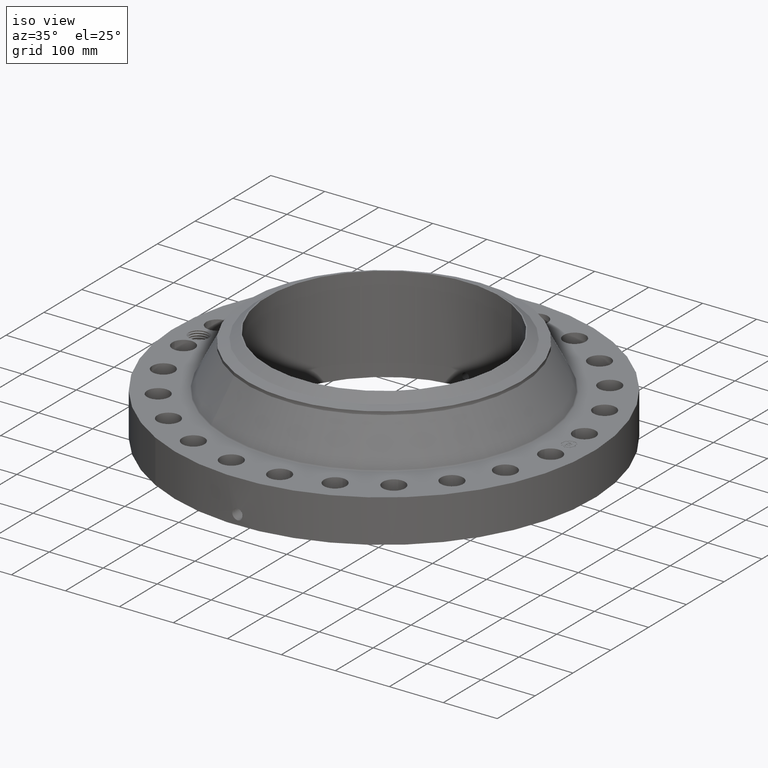
[diagram: clean part render]
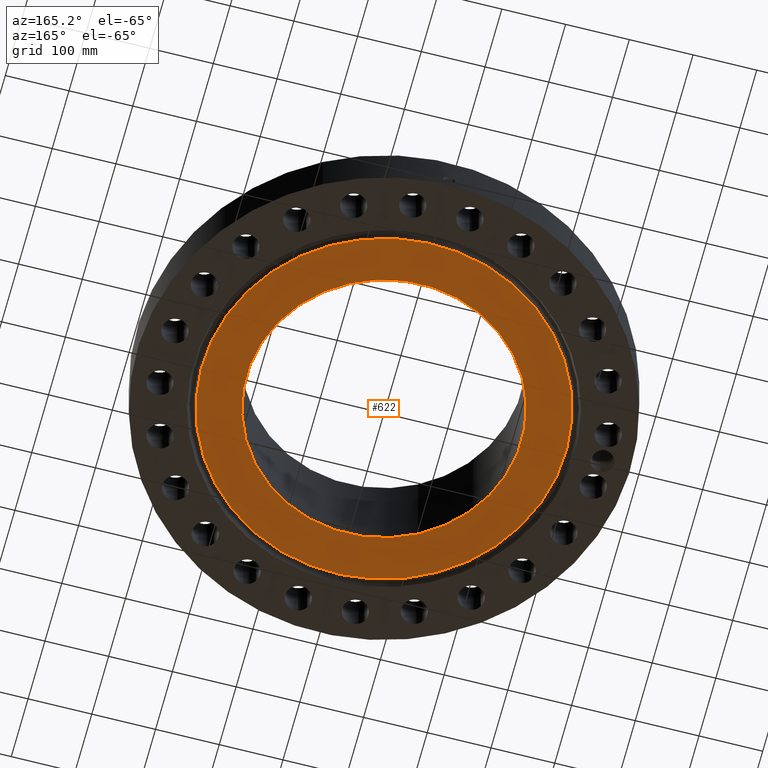
[diagram: tour spotlight — one face highlighted and labeled with its STEP entity id]
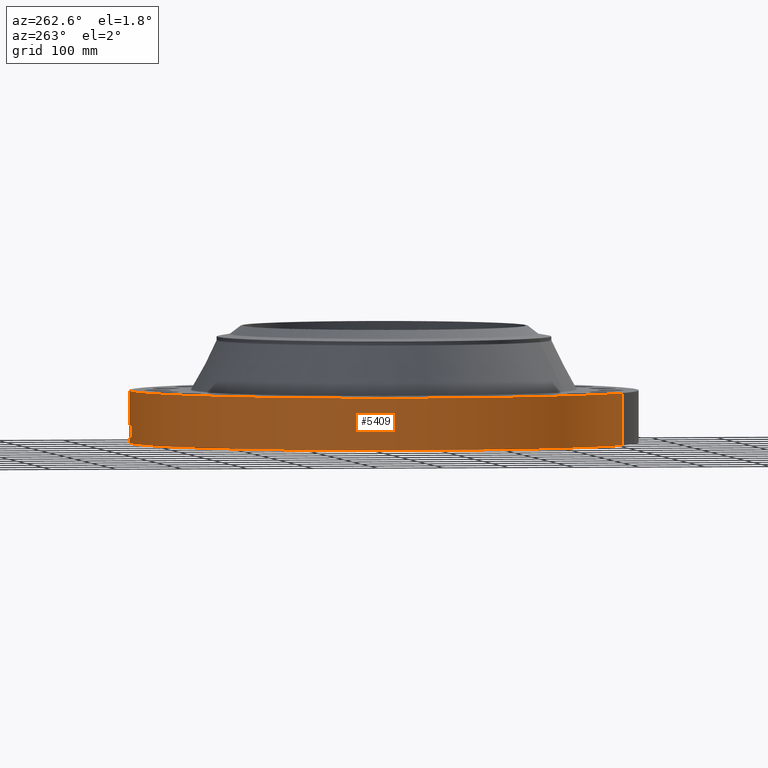
[diagram: tour spotlight — one face highlighted and labeled with its STEP entity id]
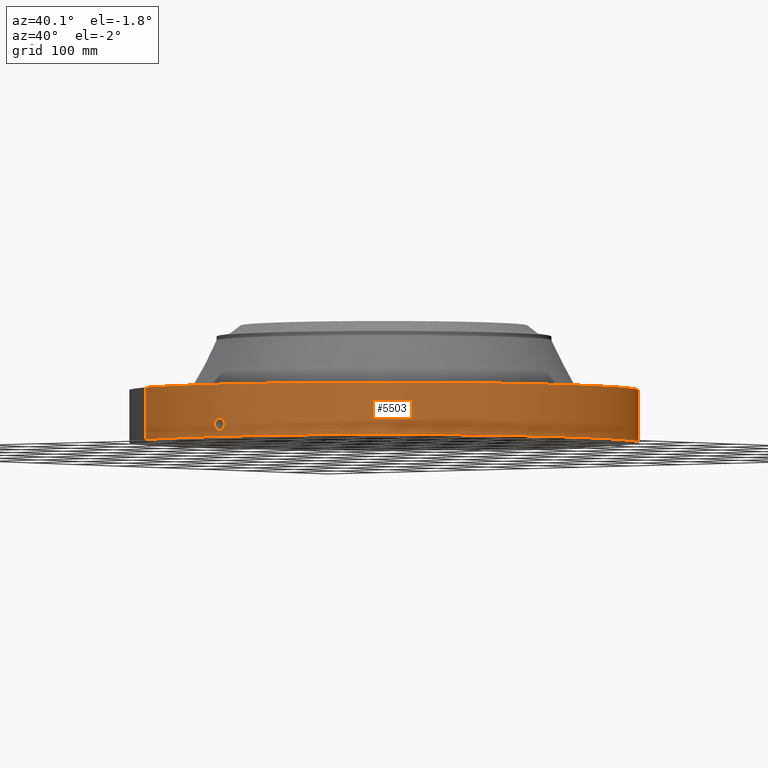
[diagram: tour spotlight — one face highlighted and labeled with its STEP entity id]
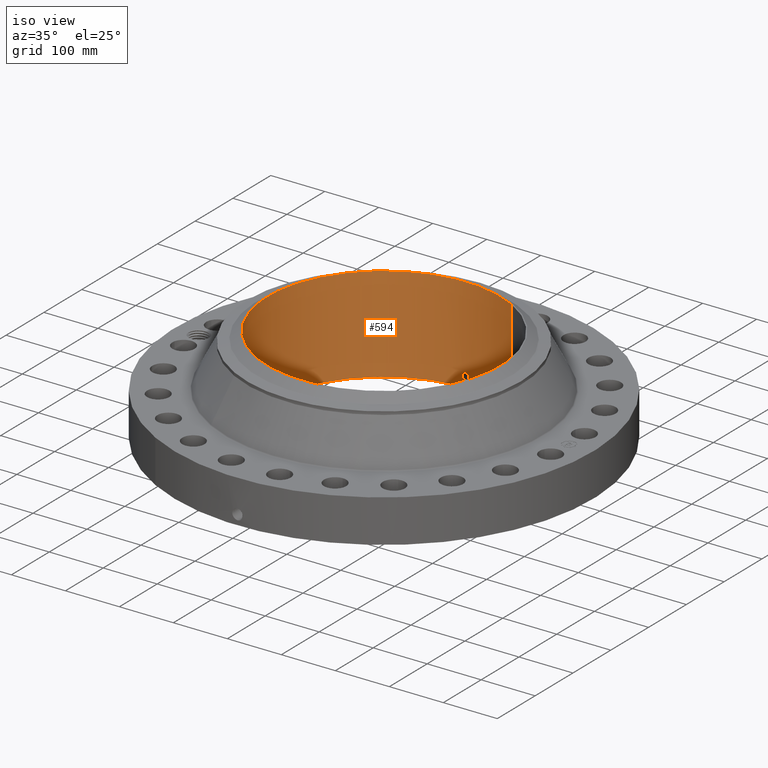
[diagram: tour spotlight — one face highlighted and labeled with its STEP entity id]
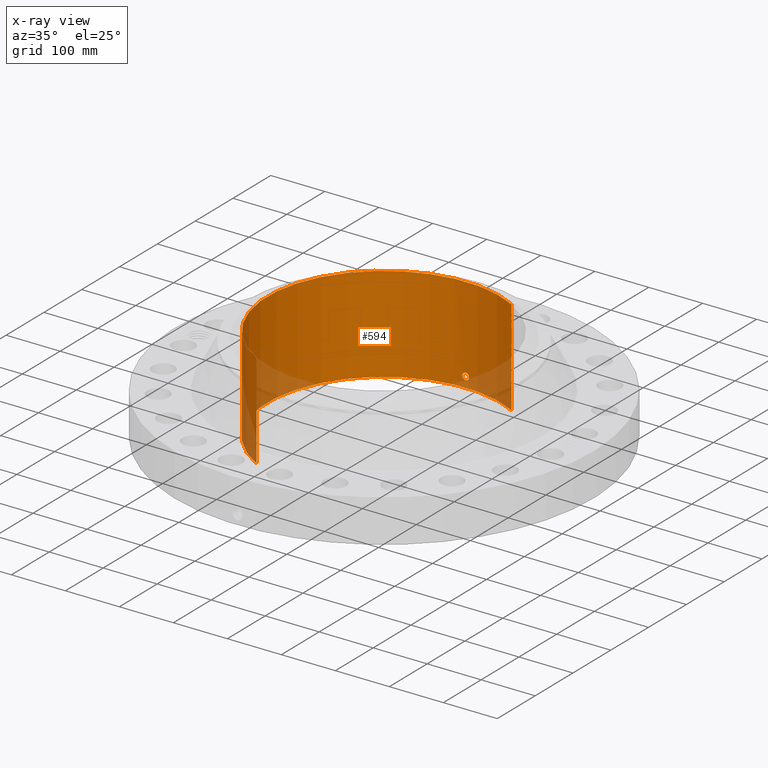
[diagram: x-ray of the same camera — body ghosted, this tour face saturated]
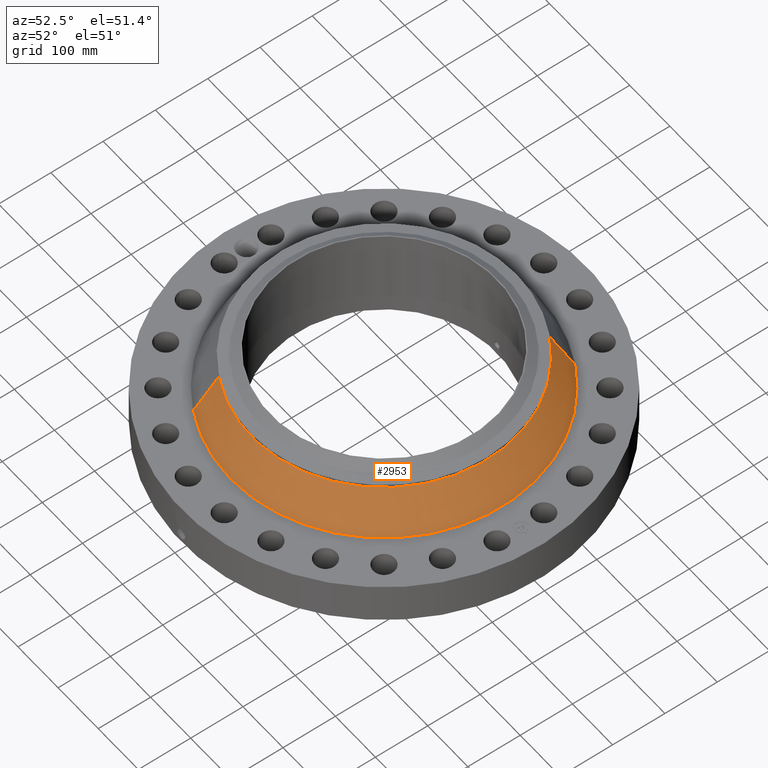
[diagram: tour spotlight — one face highlighted and labeled with its STEP entity id]
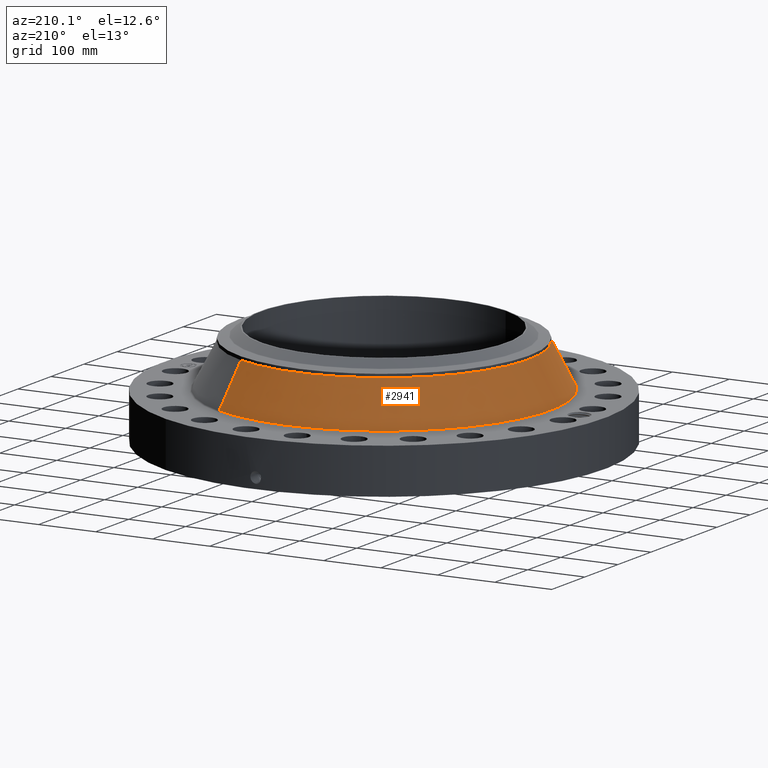
[diagram: tour spotlight — one face highlighted and labeled with its STEP entity id]
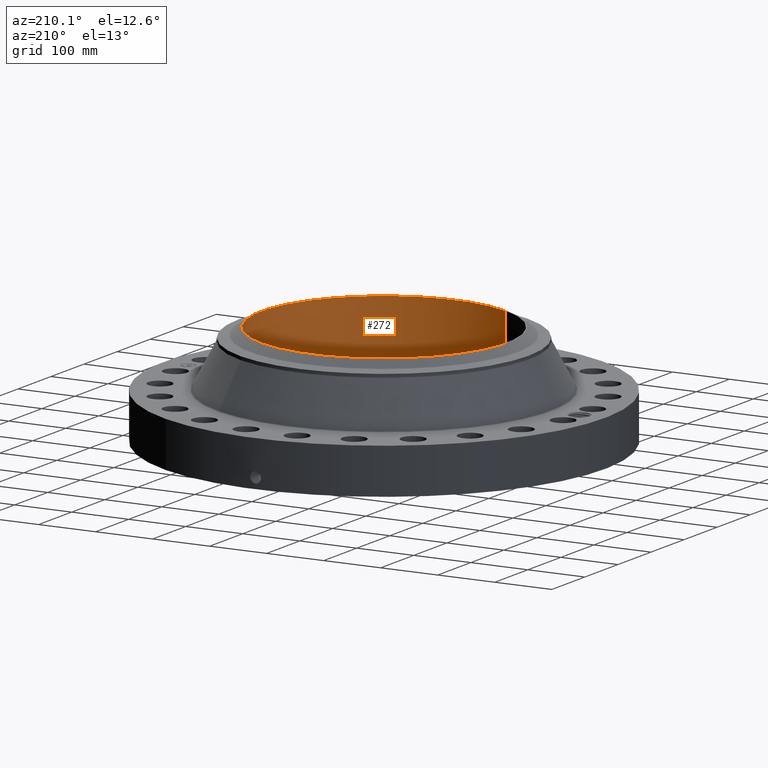
[diagram: tour spotlight — one face highlighted and labeled with its STEP entity id]
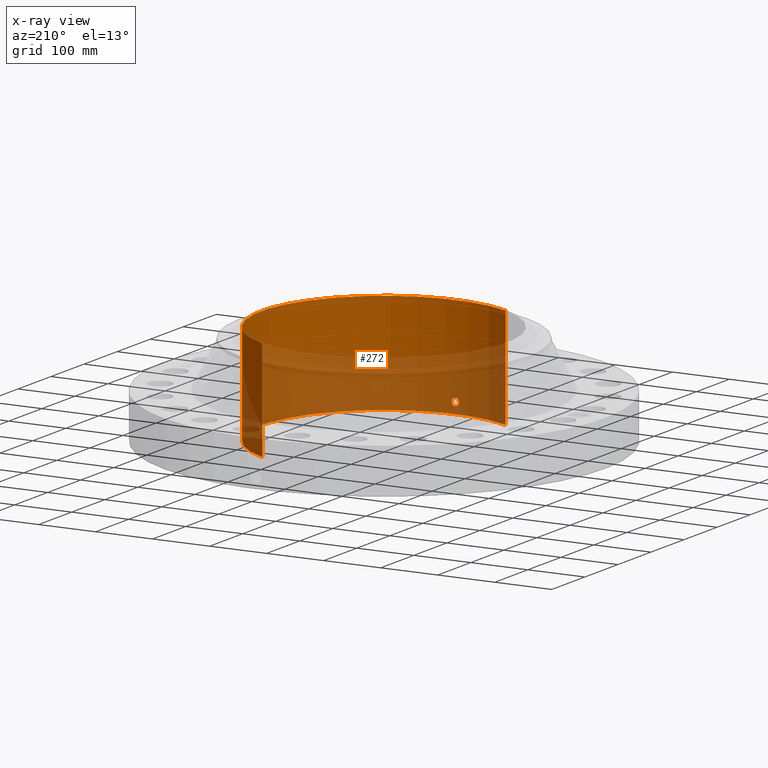
[diagram: x-ray of the same camera — body ghosted, this tour face saturated]
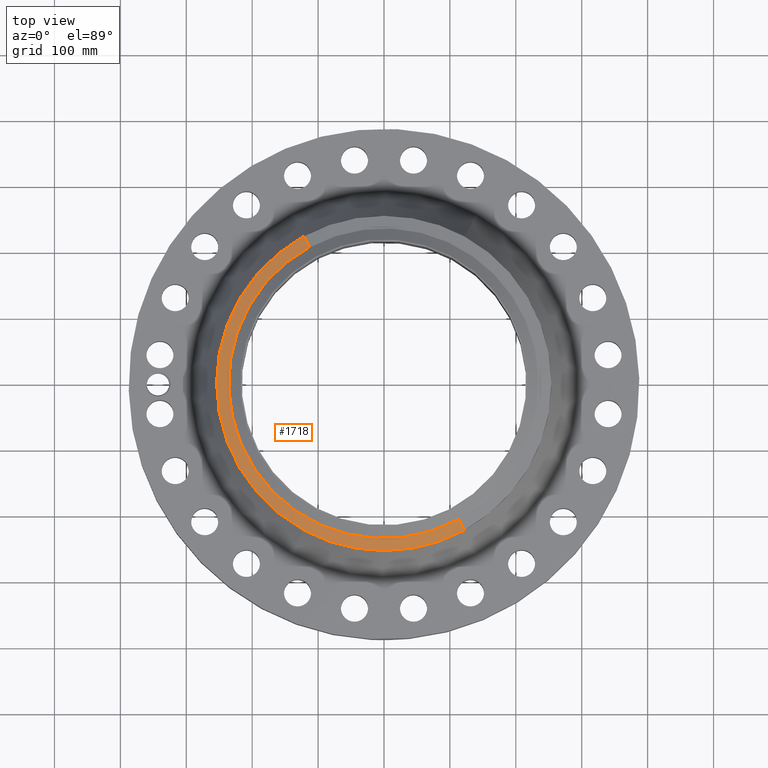
[diagram: tour spotlight — one face highlighted and labeled with its STEP entity id]
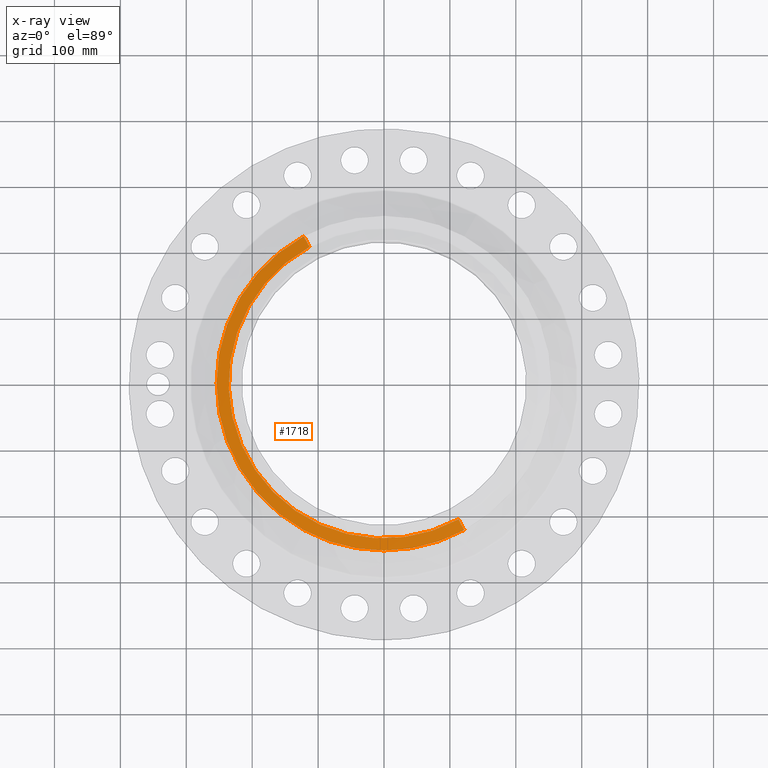
[diagram: x-ray of the same camera — body ghosted, this tour face saturated]
A machine part: a face-by-face anatomy tour. The part has 835 B-rep faces; the first image is the clean iso view, then the 8 largest visible faces are spotlighted one at a time (largest first), each with its STEP entity span.

Face 1 — auxiliary view, entity #622. In plain terms, the highlighted planar face has unit normal (0, 0, -1).
Definition (entity closure, byte-faithful):
#252=AXIS2_PLACEMENT_3D('Circle Axis2P3D',#250,#251,$) ;
#543=AXIS2_PLACEMENT_3D('Circle Axis2P3D',#541,#542,$) ;
#598=AXIS2_PLACEMENT_3D('Plane Axis2P3D',#595,#596,#597) ;
#602=AXIS2_PLACEMENT_3D('Circle Axis2P3D',#600,#601,$) ;
#611=AXIS2_PLACEMENT_3D('Circle Axis2P3D',#609,#610,$) ;
#247=CARTESIAN_POINT('Vertex',(4.07511707815,7.4594517761,-6.93758261687E-014)) ;
#250=CARTESIAN_POINT('Axis2P3D Location',(0.,0.,-6.93758261687E-014)) ;
#254=CARTESIAN_POINT('Vertex',(-4.07511707815,-7.4594517761,-6.93758261687E-014)) ;
#541=CARTESIAN_POINT('Axis2P3D Location',(0.,0.,-6.93758261687E-014)) ;
#595=CARTESIAN_POINT('Axis2P3D Location',(0.,8.50000000003,0.)) ;
#600=CARTESIAN_POINT('Axis2P3D Location',(1.1189649382E-015,-1.1189649382E-015,0.)) ;
#604=CARTESIAN_POINT('Vertex',(-5.38610621347,9.8592012916,3.40934629609E-016)) ;
#606=CARTESIAN_POINT('Vertex',(5.38610621347,-9.8592012916,0.)) ;
#609=CARTESIAN_POINT('Axis2P3D Location',(-3.35689481461E-015,2.23792987641E-015,0.)) ;
#251=DIRECTION('Axis2P3D Direction',(0.,0.,-0.0393700787402)) ;
#542=DIRECTION('Axis2P3D Direction',(0.,0.,-0.0393700787402)) ;
#596=DIRECTION('Axis2P3D Direction',(0.,0.,-0.0393700787402)) ;
#597=DIRECTION('Axis2P3D XDirection',(0.0393700787402,0.,0.)) ;
#601=DIRECTION('Axis2P3D Direction',(0.,0.,-0.0393700787402)) ;
#610=DIRECTION('Axis2P3D Direction',(0.,0.,-0.0393700787402)) ;
#615=ORIENTED_EDGE('',*,*,#608,.T.) ;
#616=ORIENTED_EDGE('',*,*,#613,.T.) ;
#619=ORIENTED_EDGE('',*,*,#256,.F.) ;
#620=ORIENTED_EDGE('',*,*,#545,.F.) ;
#621=FACE_BOUND('',#618,.T.) ;
#622=ADVANCED_FACE('PartBody',(#617,#621),#599,.T.) ;
#253=CIRCLE('generated circle',#252,8.50000000003) ;
#544=CIRCLE('generated circle',#543,8.50000000003) ;
#603=CIRCLE('generated circle',#602,11.2345) ;
#612=CIRCLE('generated circle',#611,11.2345) ;
#256=EDGE_CURVE('',#248,#255,#253,.T.) ;
#545=EDGE_CURVE('',#255,#248,#544,.T.) ;
#608=EDGE_CURVE('',#605,#607,#603,.T.) ;
#613=EDGE_CURVE('',#607,#605,#612,.T.) ;
#614=EDGE_LOOP('',(#615,#616)) ;
#618=EDGE_LOOP('',(#619,#620)) ;
#617=FACE_OUTER_BOUND('',#614,.T.) ;
#599=PLANE('',#598) ;
#248=VERTEX_POINT('',#247) ;
#255=VERTEX_POINT('',#254) ;
#605=VERTEX_POINT('',#604) ;
#607=VERTEX_POINT('',#606) ;

Face 2 — auxiliary view, entity #5409. In plain terms, the highlighted cylindrical surface (partial cylindrical patch) has radius 387.35 mm, axis along (0, 0, -1).
Definition (entity closure, byte-faithful):
#3850=AXIS2_PLACEMENT_3D('Circle Axis2P3D',#3848,#3849,$) ;
#4556=AXIS2_PLACEMENT_3D('Circle Axis2P3D',#4554,#4555,$) ;
#5304=AXIS2_PLACEMENT_3D('Cylinder Axis2P3D',#5301,#5302,#5303) ;
#3848=CARTESIAN_POINT('Axis2P3D Location',(0.,0.,0.)) ;
#3852=CARTESIAN_POINT('Vertex',(-7.31123946374,-13.3831340689,1.67844740731E-015)) ;
#3854=CARTESIAN_POINT('Vertex',(7.31123946374,13.3831340689,1.67844740731E-015)) ;
#4549=CARTESIAN_POINT('Vertex',(7.31123946374,13.3831340689,3.12500000001)) ;
#4551=CARTESIAN_POINT('Vertex',(-7.31123946374,-13.3831340689,3.12500000001)) ;
#4554=CARTESIAN_POINT('Axis2P3D Location',(0.,0.,3.12500000001)) ;
#5301=CARTESIAN_POINT('Axis2P3D Location',(0.,0.,3.49750000001)) ;
#5306=CARTESIAN_POINT('Line Origine',(-7.31123946374,-13.3831340689,1.56250000001)) ;
#5311=CARTESIAN_POINT('Line Origine',(7.31123946374,13.3831340689,1.56250000001)) ;
#5323=CARTESIAN_POINT('Control Point',(-0.000716048937865,15.2499999833,1.10411846129)) ;
#5324=CARTESIAN_POINT('Control Point',(-0.0189700497915,15.2499991262,1.10408159453)) ;
#5325=CARTESIAN_POINT('Control Point',(-0.0372208610663,15.2499652357,1.10262937582)) ;
#5326=CARTESIAN_POINT('Control Point',(-0.0552507713392,15.2498999129,1.09977930477)) ;
#5327=CARTESIAN_POINT('Vertex',(-0.000715696379591,15.2499999833,1.10411851056)) ;
#5329=CARTESIAN_POINT('Vertex',(-0.0552419730431,15.249900197,1.09978071368)) ;
#5333=CARTESIAN_POINT('Control Point',(-0.0552418779669,15.2498999451,1.09978016677)) ;
#5334=CARTESIAN_POINT('Control Point',(-0.0956980511672,15.249753395,1.09536272165)) ;
#5335=CARTESIAN_POINT('Control Point',(-0.135516472798,15.249441984,1.08358726771)) ;
#5336=CARTESIAN_POINT('Control Point',(-0.172195687342,15.2490277935,1.06523274047)) ;
#5337=CARTESIAN_POINT('Vertex',(-0.172195687342,15.2490277935,1.06523274047)) ;
#5341=CARTESIAN_POINT('Control Point',(-0.0310152955329,15.2499684607,0.341189291004)) ;
#5342=CARTESIAN_POINT('Control Point',(-0.0961823792399,15.2498359243,0.349436742334)) ;
#5343=CARTESIAN_POINT('Control Point',(-0.159294070966,15.2493594718,0.371293742778)) ;
#5344=CARTESIAN_POINT('Control Point',(-0.216401166251,15.248588709,0.40609880353)) ;
#5345=CARTESIAN_POINT('Control Point',(-0.288819786934,15.2473275342,0.474189951409)) ;
#5346=CARTESIAN_POINT('Control Point',(-0.336428397375,15.246299475,0.558671465485)) ;
#5347=CARTESIAN_POINT('Control Point',(-0.349472608061,15.2460004618,0.58873297338)) ;
#5348=CARTESIAN_POINT('Control Point',(-0.371687709831,15.2454753167,0.658970823499)) ;
#5349=CARTESIAN_POINT('Control Point',(-0.377175371761,15.2453335919,0.732141211967)) ;
#5350=CARTESIAN_POINT('Control Point',(-0.374910276697,15.2453911794,0.772947961975)) ;
#5351=CARTESIAN_POINT('Control Point',(-0.356496007121,15.2458512497,0.87072433446)) ;
#5352=CARTESIAN_POINT('Control Point',(-0.308136761367,15.2469313737,0.957943273323)) ;
#5353=CARTESIAN_POINT('Control Point',(-0.269818060649,15.2477093275,1.00323966133)) ;
#5354=CARTESIAN_POINT('Control Point',(-0.223535755202,15.2484480491,1.03954181886)) ;
#5355=CARTESIAN_POINT('Control Point',(-0.172195687342,15.2490277935,1.06523274047)) ;
#5356=CARTESIAN_POINT('Vertex',(-0.0310152955329,15.2499684607,0.341189291004)) ;
#5360=CARTESIAN_POINT('Control Point',(-0.0310152955329,15.2499684607,0.341189291004)) ;
#5361=CARTESIAN_POINT('Control Point',(-0.0206719970494,15.2499894969,0.340874570362)) ;
#5362=CARTESIAN_POINT('Control Point',(-0.0103211280085,15.2500000019,0.340936539162)) ;
#5363=CARTESIAN_POINT('Control Point',(2.7287835326E-006,15.2500000001,0.341374667805)) ;
#5364=CARTESIAN_POINT('Vertex',(2.7287835403E-006,15.2500000001,0.341374667805)) ;
#5368=CARTESIAN_POINT('Control Point',(0.192625061438,15.2487834134,0.397413269239)) ;
#5369=CARTESIAN_POINT('Control Point',(0.149005457481,15.2493344231,0.372040395926)) ;
#5370=CARTESIAN_POINT('Control Point',(0.101116385111,15.2497737091,0.353779864819)) ;
#5371=CARTESIAN_POINT('Control Point',(0.0508056148691,15.249999991,0.343530662196)) ;
#5372=CARTESIAN_POINT('Control Point',(2.72878355967E-006,15.2500000001,0.341374667805)) ;
#5373=CARTESIAN_POINT('Vertex',(0.192625061438,15.2487834134,0.397413269239)) ;
#5377=CARTESIAN_POINT('Control Point',(0.192625061438,15.2487834134,0.397413269239)) ;
#5378=CARTESIAN_POINT('Control Point',(0.249453805308,15.2480655436,0.430469701706)) ;
#5379=CARTESIAN_POINT('Control Point',(0.299509285738,15.2471684578,0.474842708828)) ;
#5380=CARTESIAN_POINT('Control Point',(0.339646008742,15.2462572491,0.528972975959)) ;
#5381=CARTESIAN_POINT('Control Point',(0.383846960493,15.2451782379,0.627171372354)) ;
#5382=CARTESIAN_POINT('Control Point',(0.392394974164,15.2449495017,0.732456543686)) ;
#5383=CARTESIAN_POINT('Control Point',(0.390268284272,15.245005748,0.772621208291)) ;
#5384=CARTESIAN_POINT('Control Point',(0.376095202185,15.2453740947,0.847526035613)) ;
#5385=CARTESIAN_POINT('Control Point',(0.343961356352,15.2461332341,0.915956528657)) ;
#5386=CARTESIAN_POINT('Control Point',(0.324884417061,15.2465612266,0.946378257504)) ;
#5387=CARTESIAN_POINT('Control Point',(0.263166902017,15.2478271679,1.02273613888)) ;
#5388=CARTESIAN_POINT('Control Point',(0.180081949093,15.2490857237,1.07567042785)) ;
#5389=CARTESIAN_POINT('Control Point',(0.121354926313,15.2497029243,1.09768573552)) ;
#5390=CARTESIAN_POINT('Control Point',(0.060197349108,15.2500001022,1.10710564637)) ;
#5391=CARTESIAN_POINT('Control Point',(-2.58579356016E-005,15.25,1.1041529843)) ;
#5392=CARTESIAN_POINT('Vertex',(-2.58579355483E-005,15.25,1.1041529843)) ;
#5396=CARTESIAN_POINT('Control Point',(-0.000715696370008,15.2499999833,1.10411851054)) ;
#5397=CARTESIAN_POINT('Control Point',(-0.00037080169758,15.2499999995,1.10413607216)) ;
#5398=CARTESIAN_POINT('Control Point',(-2.58579405782E-005,15.25,1.1041529843)) ;
#3849=DIRECTION('Axis2P3D Direction',(0.,0.,-0.0393700787402)) ;
#4555=DIRECTION('Axis2P3D Direction',(0.,0.,-0.0393700787402)) ;
#5302=DIRECTION('Axis2P3D Direction',(0.,0.,-0.0393700787402)) ;
#5303=DIRECTION('Axis2P3D XDirection',(0.0188750212049,0.0345504945626,0.)) ;
#5307=DIRECTION('Vector Direction',(0.,0.,-0.0393700787402)) ;
#5312=DIRECTION('Vector Direction',(0.,0.,-0.0393700787402)) ;
#5308=VECTOR('Line Direction',#5307,0.0393700787402) ;
#5313=VECTOR('Line Direction',#5312,0.0393700787402) ;
#5317=ORIENTED_EDGE('',*,*,#3856,.F.) ;
#5318=ORIENTED_EDGE('',*,*,#5310,.T.) ;
#5319=ORIENTED_EDGE('',*,*,#4558,.T.) ;
#5320=ORIENTED_EDGE('',*,*,#5315,.F.) ;
#5401=ORIENTED_EDGE('',*,*,#5331,.T.) ;
#5402=ORIENTED_EDGE('',*,*,#5339,.T.) ;
#5403=ORIENTED_EDGE('',*,*,#5358,.F.) ;
#5404=ORIENTED_EDGE('',*,*,#5366,.T.) ;
#5405=ORIENTED_EDGE('',*,*,#5375,.F.) ;
#5406=ORIENTED_EDGE('',*,*,#5394,.T.) ;
#5407=ORIENTED_EDGE('',*,*,#5399,.F.) ;
#5408=FACE_BOUND('',#5400,.T.) ;
#5409=ADVANCED_FACE('PartBody',(#5321,#5408),#5305,.T.) ;
#5322=B_SPLINE_CURVE_WITH_KNOTS('',3,(#5323,#5324,#5325,#5326),.UNSPECIFIED.,.F.,.U.,(4,4),(34.6166020217,36.641710153),.UNSPECIFIED.) ;
#5332=B_SPLINE_CURVE_WITH_KNOTS('',3,(#5333,#5334,#5335,#5336),.UNSPECIFIED.,.F.,.U.,(4,4),(0.,4.57283674057),.UNSPECIFIED.) ;
#5340=B_SPLINE_CURVE_WITH_KNOTS('',5,(#5341,#5342,#5343,#5344,#5345,#5346,#5347,#5348,#5349,#5350,#5351,#5352,#5353,#5354,#5355),.UNSPECIFIED.,.F.,.U.,(6,3,3,3,6),(0.,11.4156338615,17.2563909879,24.6134540485,35.281155944),.UNSPECIFIED.) ;
#5359=B_SPLINE_CURVE_WITH_KNOTS('',3,(#5360,#5361,#5362,#5363),.UNSPECIFIED.,.F.,.U.,(4,4),(0.,1.078963782),.UNSPECIFIED.) ;
#5367=B_SPLINE_CURVE_WITH_KNOTS('',4,(#5368,#5369,#5370,#5371,#5372),.UNSPECIFIED.,.F.,.U.,(5,5),(0.,7.07932769295),.UNSPECIFIED.) ;
#5376=B_SPLINE_CURVE_WITH_KNOTS('',5,(#5377,#5378,#5379,#5380,#5381,#5382,#5383,#5384,#5385,#5386,#5387,#5388,#5389,#5390,#5391),.UNSPECIFIED.,.F.,.U.,(6,3,3,3,6),(0.,11.5289130882,18.6079912923,25.0299991695,36.2869665405),.UNSPECIFIED.) ;
#5395=B_SPLINE_CURVE_WITH_KNOTS('',2,(#5396,#5397,#5398),.UNSPECIFIED.,.F.,.U.,(3,3),(1.02181010311,1.04760096341),.UNSPECIFIED.) ;
#3851=CIRCLE('generated circle',#3850,15.2500000001) ;
#4557=CIRCLE('generated circle',#4556,15.2500000001) ;
#5305=CYLINDRICAL_SURFACE('generated cylinder',#5304,15.2500000001) ;
#3856=EDGE_CURVE('',#3853,#3855,#3851,.T.) ;
#4558=EDGE_CURVE('',#4552,#4550,#4557,.T.) ;
#5310=EDGE_CURVE('',#3853,#4552,#5309,.F.) ;
#5315=EDGE_CURVE('',#3855,#4550,#5314,.F.) ;
#5331=EDGE_CURVE('',#5328,#5330,#5322,.T.) ;
#5339=EDGE_CURVE('',#5330,#5338,#5332,.T.) ;
#5358=EDGE_CURVE('',#5357,#5338,#5340,.T.) ;
#5366=EDGE_CURVE('',#5357,#5365,#5359,.T.) ;
#5375=EDGE_CURVE('',#5374,#5365,#5367,.T.) ;
#5394=EDGE_CURVE('',#5374,#5393,#5376,.T.) ;
#5399=EDGE_CURVE('',#5328,#5393,#5395,.T.) ;
#5316=EDGE_LOOP('',(#5317,#5318,#5319,#5320)) ;
#5400=EDGE_LOOP('',(#5401,#5402,#5403,#5404,#5405,#5406,#5407)) ;
#5321=FACE_OUTER_BOUND('',#5316,.T.) ;
#5309=LINE('Line',#5306,#5308) ;
#5314=LINE('Line',#5311,#5313) ;
#3853=VERTEX_POINT('',#3852) ;
#3855=VERTEX_POINT('',#3854) ;
#4550=VERTEX_POINT('',#4549) ;
#4552=VERTEX_POINT('',#4551) ;
#5328=VERTEX_POINT('',#5327) ;
#5330=VERTEX_POINT('',#5329) ;
#5338=VERTEX_POINT('',#5337) ;
#5357=VERTEX_POINT('',#5356) ;
#5365=VERTEX_POINT('',#5364) ;
#5374=VERTEX_POINT('',#5373) ;
#5393=VERTEX_POINT('',#5392) ;

Face 3 — auxiliary view, entity #5503. In plain terms, the highlighted cylindrical surface (partial cylindrical patch) has radius 387.35 mm, axis along (0, 0, -1).
Definition (entity closure, byte-faithful):
#3859=AXIS2_PLACEMENT_3D('Circle Axis2P3D',#3857,#3858,$) ;
#4547=AXIS2_PLACEMENT_3D('Circle Axis2P3D',#4545,#4546,$) ;
#5304=AXIS2_PLACEMENT_3D('Cylinder Axis2P3D',#5301,#5302,#5303) ;
#3852=CARTESIAN_POINT('Vertex',(-7.31123946374,-13.3831340689,1.67844740731E-015)) ;
#3854=CARTESIAN_POINT('Vertex',(7.31123946374,13.3831340689,1.67844740731E-015)) ;
#3857=CARTESIAN_POINT('Axis2P3D Location',(0.,0.,0.)) ;
#4545=CARTESIAN_POINT('Axis2P3D Location',(0.,0.,3.12500000001)) ;
#4549=CARTESIAN_POINT('Vertex',(7.31123946374,13.3831340689,3.12500000001)) ;
#4551=CARTESIAN_POINT('Vertex',(-7.31123946374,-13.3831340689,3.12500000001)) ;
#5301=CARTESIAN_POINT('Axis2P3D Location',(0.,0.,3.49750000001)) ;
#5306=CARTESIAN_POINT('Line Origine',(-7.31123946374,-13.3831340689,1.56250000001)) ;
#5311=CARTESIAN_POINT('Line Origine',(7.31123946374,13.3831340689,1.56250000001)) ;
#5417=CARTESIAN_POINT('Control Point',(0.000716048945503,-15.2499999833,1.10411846129)) ;
#5418=CARTESIAN_POINT('Control Point',(0.0189700498045,-15.2499991262,1.10408159453)) ;
#5419=CARTESIAN_POINT('Control Point',(0.0372208610756,-15.2499652357,1.10262937582)) ;
#5420=CARTESIAN_POINT('Control Point',(0.0552507713436,-15.2498999129,1.09977930477)) ;
#5421=CARTESIAN_POINT('Vertex',(0.000715696379584,-15.2499999833,1.10411851056)) ;
#5423=CARTESIAN_POINT('Vertex',(0.0552419730431,-15.249900197,1.09978071368)) ;
#5427=CARTESIAN_POINT('Control Point',(0.0552418779668,-15.2498999451,1.09978016677)) ;
#5428=CARTESIAN_POINT('Control Point',(0.0956980511667,-15.249753395,1.09536272165)) ;
#5429=CARTESIAN_POINT('Control Point',(0.135516472798,-15.249441984,1.08358726771)) ;
#5430=CARTESIAN_POINT('Control Point',(0.172195687342,-15.2490277935,1.06523274047)) ;
#5431=CARTESIAN_POINT('Vertex',(0.172195687342,-15.2490277935,1.06523274047)) ;
#5435=CARTESIAN_POINT('Control Point',(0.0310152955329,-15.2499684607,0.341189291004)) ;
#5436=CARTESIAN_POINT('Control Point',(0.0961823792105,-15.2498359243,0.34943674233)) ;
#5437=CARTESIAN_POINT('Control Point',(0.159294070908,-15.2493594718,0.371293742764)) ;
#5438=CARTESIAN_POINT('Control Point',(0.216401166223,-15.248588709,0.40609880352)) ;
#5439=CARTESIAN_POINT('Control Point',(0.288819786927,-15.2473275342,0.474189951399)) ;
#5440=CARTESIAN_POINT('Control Point',(0.336428397382,-15.246299475,0.558671465487)) ;
#5441=CARTESIAN_POINT('Control Point',(0.349472608004,-15.2460004618,0.588732973215)) ;
#5442=CARTESIAN_POINT('Control Point',(0.371687709783,-15.2454753167,0.658970823283)) ;
#5443=CARTESIAN_POINT('Control Point',(0.377175371748,-15.2453335919,0.732141211699)) ;
#5444=CARTESIAN_POINT('Control Point',(0.374910276672,-15.2453911794,0.77294796207)) ;
#5445=CARTESIAN_POINT('Control Point',(0.356496007092,-15.2458512497,0.87072433454)) ;
#5446=CARTESIAN_POINT('Control Point',(0.308136761338,-15.2469313737,0.957943273397)) ;
#5447=CARTESIAN_POINT('Control Point',(0.269818060775,-15.2477093275,1.00323966122)) ;
#5448=CARTESIAN_POINT('Control Point',(0.223535755273,-15.2484480491,1.03954181882)) ;
#5449=CARTESIAN_POINT('Control Point',(0.172195687342,-15.2490277935,1.06523274047)) ;
#5450=CARTESIAN_POINT('Vertex',(0.0310152955329,-15.2499684607,0.341189291004)) ;
#5454=CARTESIAN_POINT('Control Point',(0.0310152955329,-15.2499684607,0.341189291004)) ;
#5455=CARTESIAN_POINT('Control Point',(0.0206719970494,-15.2499894969,0.340874570362)) ;
#5456=CARTESIAN_POINT('Control Point',(0.0103211280085,-15.2500000019,0.340936539162)) ;
#5457=CARTESIAN_POINT('Control Point',(-2.72878354802E-006,-15.2500000001,0.341374667805)) ;
#5458=CARTESIAN_POINT('Vertex',(-2.72878354212E-006,-15.2500000001,0.341374667805)) ;
#5462=CARTESIAN_POINT('Control Point',(-0.192625061438,-15.2487834134,0.397413269239)) ;
#5463=CARTESIAN_POINT('Control Point',(-0.149005457481,-15.2493344231,0.372040395926)) ;
#5464=CARTESIAN_POINT('Control Point',(-0.10111638511,-15.2497737091,0.353779864822)) ;
#5465=CARTESIAN_POINT('Control Point',(-0.050805614869,-15.249999991,0.343530662196)) ;
#5466=CARTESIAN_POINT('Control Point',(-2.72878354801E-006,-15.2500000001,0.341374667805)) ;
#5467=CARTESIAN_POINT('Vertex',(-0.192625061438,-15.2487834134,0.397413269239)) ;
#5471=CARTESIAN_POINT('Control Point',(-0.192625061438,-15.2487834134,0.397413269239)) ;
#5472=CARTESIAN_POINT('Control Point',(-0.249453805314,-15.2480655436,0.430469701709)) ;
#5473=CARTESIAN_POINT('Control Point',(-0.299509285751,-15.2471684578,0.474842708828)) ;
#5474=CARTESIAN_POINT('Control Point',(-0.339646008772,-15.2462572491,0.528972976003)) ;
#5475=CARTESIAN_POINT('Control Point',(-0.383846960558,-15.2451782379,0.627171372519)) ;
#5476=CARTESIAN_POINT('Control Point',(-0.392394974184,-15.2449495017,0.732456543982)) ;
#5477=CARTESIAN_POINT('Control Point',(-0.390268284309,-15.245005748,0.772621208126)) ;
#5478=CARTESIAN_POINT('Control Point',(-0.376095202203,-15.2453740947,0.847526035631)) ;
#5479=CARTESIAN_POINT('Control Point',(-0.343961356268,-15.2461332341,0.915956528825)) ;
#5480=CARTESIAN_POINT('Control Point',(-0.324884417103,-15.2465612266,0.946378257459)) ;
#5481=CARTESIAN_POINT('Control Point',(-0.26316690205,-15.2478271679,1.02273613885)) ;
#5482=CARTESIAN_POINT('Control Point',(-0.180081949113,-15.2490857237,1.07567042783)) ;
#5483=CARTESIAN_POINT('Control Point',(-0.121354926224,-15.2497029243,1.09768573553)) ;
#5484=CARTESIAN_POINT('Control Point',(-0.0601973490645,-15.2500001022,1.10710564637)) ;
#5485=CARTESIAN_POINT('Control Point',(2.58579355591E-005,-15.25,1.1041529843)) ;
#5486=CARTESIAN_POINT('Vertex',(2.58579355465E-005,-15.25,1.1041529843)) ;
#5490=CARTESIAN_POINT('Control Point',(0.000715696369973,-15.2499999833,1.10411851054)) ;
#5491=CARTESIAN_POINT('Control Point',(0.000370801697565,-15.2499999995,1.10413607216)) ;
#5492=CARTESIAN_POINT('Control Point',(2.58579405819E-005,-15.25,1.1041529843)) ;
#3858=DIRECTION('Axis2P3D Direction',(0.,0.,-0.0393700787402)) ;
#4546=DIRECTION('Axis2P3D Direction',(0.,0.,-0.0393700787402)) ;
#5302=DIRECTION('Axis2P3D Direction',(0.,0.,-0.0393700787402)) ;
#5303=DIRECTION('Axis2P3D XDirection',(0.0188750212049,0.0345504945626,0.)) ;
#5307=DIRECTION('Vector Direction',(0.,0.,-0.0393700787402)) ;
#5312=DIRECTION('Vector Direction',(0.,0.,-0.0393700787402)) ;
#5308=VECTOR('Line Direction',#5307,0.0393700787402) ;
#5313=VECTOR('Line Direction',#5312,0.0393700787402) ;
#5411=ORIENTED_EDGE('',*,*,#3861,.F.) ;
#5412=ORIENTED_EDGE('',*,*,#5315,.T.) ;
#5413=ORIENTED_EDGE('',*,*,#4553,.T.) ;
#5414=ORIENTED_EDGE('',*,*,#5310,.F.) ;
#5495=ORIENTED_EDGE('',*,*,#5425,.T.) ;
#5496=ORIENTED_EDGE('',*,*,#5433,.T.) ;
#5497=ORIENTED_EDGE('',*,*,#5452,.F.) ;
#5498=ORIENTED_EDGE('',*,*,#5460,.T.) ;
#5499=ORIENTED_EDGE('',*,*,#5469,.F.) ;
#5500=ORIENTED_EDGE('',*,*,#5488,.T.) ;
#5501=ORIENTED_EDGE('',*,*,#5493,.F.) ;
#5502=FACE_BOUND('',#5494,.T.) ;
#5503=ADVANCED_FACE('PartBody',(#5415,#5502),#5305,.T.) ;
#5416=B_SPLINE_CURVE_WITH_KNOTS('',3,(#5417,#5418,#5419,#5420),.UNSPECIFIED.,.F.,.U.,(4,4),(34.6166020346,36.6417101656),.UNSPECIFIED.) ;
#5426=B_SPLINE_CURVE_WITH_KNOTS('',3,(#5427,#5428,#5429,#5430),.UNSPECIFIED.,.F.,.U.,(4,4),(0.,4.57283674051),.UNSPECIFIED.) ;
#5434=B_SPLINE_CURVE_WITH_KNOTS('',5,(#5435,#5436,#5437,#5438,#5439,#5440,#5441,#5442,#5443,#5444,#5445,#5446,#5447,#5448,#5449),.UNSPECIFIED.,.F.,.U.,(6,3,3,3,6),(0.,11.4156338564,17.2563909907,24.6134540348,35.2811559451),.UNSPECIFIED.) ;
#5453=B_SPLINE_CURVE_WITH_KNOTS('',3,(#5454,#5455,#5456,#5457),.UNSPECIFIED.,.F.,.U.,(4,4),(0.,1.078963782),.UNSPECIFIED.) ;
#5461=B_SPLINE_CURVE_WITH_KNOTS('',4,(#5462,#5463,#5464,#5465,#5466),.UNSPECIFIED.,.F.,.U.,(5,5),(0.,7.07932769293),.UNSPECIFIED.) ;
#5470=B_SPLINE_CURVE_WITH_KNOTS('',5,(#5471,#5472,#5473,#5474,#5475,#5476,#5477,#5478,#5479,#5480,#5481,#5482,#5483,#5484,#5485),.UNSPECIFIED.,.F.,.U.,(6,3,3,3,6),(0.,11.5289130893,18.6079913138,25.0299992023,36.2869665651),.UNSPECIFIED.) ;
#5489=B_SPLINE_CURVE_WITH_KNOTS('',2,(#5490,#5491,#5492),.UNSPECIFIED.,.F.,.U.,(3,3),(1.02181010311,1.04760096341),.UNSPECIFIED.) ;
#3860=CIRCLE('generated circle',#3859,15.2500000001) ;
#4548=CIRCLE('generated circle',#4547,15.2500000001) ;
#5305=CYLINDRICAL_SURFACE('generated cylinder',#5304,15.2500000001) ;
#3861=EDGE_CURVE('',#3855,#3853,#3860,.T.) ;
#4553=EDGE_CURVE('',#4550,#4552,#4548,.T.) ;
#5310=EDGE_CURVE('',#3853,#4552,#5309,.F.) ;
#5315=EDGE_CURVE('',#3855,#4550,#5314,.F.) ;
#5425=EDGE_CURVE('',#5422,#5424,#5416,.T.) ;
#5433=EDGE_CURVE('',#5424,#5432,#5426,.T.) ;
#5452=EDGE_CURVE('',#5451,#5432,#5434,.T.) ;
#5460=EDGE_CURVE('',#5451,#5459,#5453,.T.) ;
#5469=EDGE_CURVE('',#5468,#5459,#5461,.T.) ;
#5488=EDGE_CURVE('',#5468,#5487,#5470,.T.) ;
#5493=EDGE_CURVE('',#5422,#5487,#5489,.T.) ;
#5410=EDGE_LOOP('',(#5411,#5412,#5413,#5414)) ;
#5494=EDGE_LOOP('',(#5495,#5496,#5497,#5498,#5499,#5500,#5501)) ;
#5415=FACE_OUTER_BOUND('',#5410,.T.) ;
#5309=LINE('Line',#5306,#5308) ;
#5314=LINE('Line',#5311,#5313) ;
#3853=VERTEX_POINT('',#3852) ;
#3855=VERTEX_POINT('',#3854) ;
#4550=VERTEX_POINT('',#4549) ;
#4552=VERTEX_POINT('',#4551) ;
#5422=VERTEX_POINT('',#5421) ;
#5424=VERTEX_POINT('',#5423) ;
#5432=VERTEX_POINT('',#5431) ;
#5451=VERTEX_POINT('',#5450) ;
#5459=VERTEX_POINT('',#5458) ;
#5468=VERTEX_POINT('',#5467) ;
#5487=VERTEX_POINT('',#5486) ;

Face 4 — iso view, entity #594. An x-ray twin of the same camera follows (body ghosted, this face saturated) — the face is partly hidden behind the body. In plain terms, the highlighted cylindrical surface (partial cylindrical patch) has radius 215.9 mm, axis along (0, 0, -1).
Definition (entity closure, byte-faithful):
#232=AXIS2_PLACEMENT_3D('Cylinder Axis2P3D',#229,#230,#231) ;
#533=AXIS2_PLACEMENT_3D('Circle Axis2P3D',#531,#532,$) ;
#543=AXIS2_PLACEMENT_3D('Circle Axis2P3D',#541,#542,$) ;
#229=CARTESIAN_POINT('Axis2P3D Location',(0.,0.,3.49750000001)) ;
#238=CARTESIAN_POINT('Vertex',(4.07511707815,7.4594517761,6.99500000003)) ;
#240=CARTESIAN_POINT('Vertex',(-4.07511707815,-7.4594517761,6.99500000003)) ;
#243=CARTESIAN_POINT('Line Origine',(4.07511707815,7.4594517761,3.49750000001)) ;
#247=CARTESIAN_POINT('Vertex',(4.07511707815,7.4594517761,-6.93758261687E-014)) ;
#254=CARTESIAN_POINT('Vertex',(-4.07511707815,-7.4594517761,-6.93758261687E-014)) ;
#257=CARTESIAN_POINT('Line Origine',(-4.07511707815,-7.4594517761,3.49750000001)) ;
#531=CARTESIAN_POINT('Axis2P3D Location',(0.,0.,6.99500000003)) ;
#541=CARTESIAN_POINT('Axis2P3D Location',(0.,0.,-6.93758261687E-014)) ;
#553=CARTESIAN_POINT('Control Point',(0.219395640473,8.49716809022,0.869856384655)) ;
#554=CARTESIAN_POINT('Control Point',(0.194443120251,8.49781236066,0.915531666548)) ;
#555=CARTESIAN_POINT('Control Point',(0.157605673539,8.4986718436,0.954711061897)) ;
#556=CARTESIAN_POINT('Control Point',(0.111109047605,8.49950770969,0.983242653766)) ;
#557=CARTESIAN_POINT('Control Point',(0.0336745179514,8.50017275739,1.00588241445)) ;
#558=CARTESIAN_POINT('Control Point',(-0.0446699380422,8.49994295238,0.998056528423)) ;
#559=CARTESIAN_POINT('Control Point',(-0.070299375014,8.49976455241,0.992044114587)) ;
#560=CARTESIAN_POINT('Control Point',(-0.143955109938,8.49897618111,0.964212804454)) ;
#561=CARTESIAN_POINT('Control Point',(-0.203242425548,8.49768931437,0.909499461152)) ;
#562=CARTESIAN_POINT('Control Point',(-0.232208125453,8.49684524708,0.863261225168)) ;
#563=CARTESIAN_POINT('Control Point',(-0.255840248871,8.49615133503,0.785114128167)) ;
#564=CARTESIAN_POINT('Control Point',(-0.248283243814,8.49637304961,0.705748626887)) ;
#565=CARTESIAN_POINT('Control Point',(-0.242049456258,8.496558599,0.679185395431)) ;
#566=CARTESIAN_POINT('Control Point',(-0.232315759571,8.49683449463,0.653793734722)) ;
#567=CARTESIAN_POINT('Control Point',(-0.219395640473,8.49716809022,0.630143615351)) ;
#568=CARTESIAN_POINT('Vertex',(0.219395640473,8.49716809022,0.869856384655)) ;
#570=CARTESIAN_POINT('Vertex',(-0.219395640473,8.49716809022,0.630143615351)) ;
#574=CARTESIAN_POINT('Control Point',(-0.219395640473,8.49716809022,0.630143615351)) ;
#575=CARTESIAN_POINT('Control Point',(-0.194443120277,8.49781236066,0.584468333505)) ;
#576=CARTESIAN_POINT('Control Point',(-0.157605673615,8.4986718436,0.54528893819)) ;
#577=CARTESIAN_POINT('Control Point',(-0.1111090475,8.49950770969,0.51675734621)) ;
#578=CARTESIAN_POINT('Control Point',(-0.0336745178847,8.50017275739,0.494117585562)) ;
#579=CARTESIAN_POINT('Control Point',(0.0446699380699,8.49994295238,0.501943471586)) ;
#580=CARTESIAN_POINT('Control Point',(0.0702993749847,8.49976455241,0.507955885408)) ;
#581=CARTESIAN_POINT('Control Point',(0.143955109882,8.49897618111,0.535787195524)) ;
#582=CARTESIAN_POINT('Control Point',(0.203242425478,8.49768931438,0.590500538787)) ;
#583=CARTESIAN_POINT('Control Point',(0.232208125481,8.49684524708,0.636738774927)) ;
#584=CARTESIAN_POINT('Control Point',(0.255840248855,8.49615133503,0.714885871848)) ;
#585=CARTESIAN_POINT('Control Point',(0.248283243822,8.49637304961,0.794251373046)) ;
#586=CARTESIAN_POINT('Control Point',(0.242049456232,8.496558599,0.820814604642)) ;
#587=CARTESIAN_POINT('Control Point',(0.232315759554,8.49683449463,0.846206265315)) ;
#588=CARTESIAN_POINT('Control Point',(0.219395640473,8.49716809022,0.869856384655)) ;
#230=DIRECTION('Axis2P3D Direction',(0.,0.,-0.0393700787402)) ;
#231=DIRECTION('Axis2P3D XDirection',(-0.0188750212049,-0.0345504945626,0.)) ;
#244=DIRECTION('Vector Direction',(0.,0.,-0.0393700787402)) ;
#258=DIRECTION('Vector Direction',(0.,0.,-0.0393700787402)) ;
#532=DIRECTION('Axis2P3D Direction',(0.,0.,-0.0393700787402)) ;
#542=DIRECTION('Axis2P3D Direction',(0.,0.,-0.0393700787402)) ;
#245=VECTOR('Line Direction',#244,0.0393700787402) ;
#259=VECTOR('Line Direction',#258,0.0393700787402) ;
#547=ORIENTED_EDGE('',*,*,#535,.F.) ;
#548=ORIENTED_EDGE('',*,*,#261,.T.) ;
#549=ORIENTED_EDGE('',*,*,#545,.T.) ;
#550=ORIENTED_EDGE('',*,*,#249,.F.) ;
#591=ORIENTED_EDGE('',*,*,#572,.F.) ;
#592=ORIENTED_EDGE('',*,*,#589,.F.) ;
#593=FACE_BOUND('',#590,.T.) ;
#594=ADVANCED_FACE('PartBody',(#551,#593),#233,.F.) ;
#552=B_SPLINE_CURVE_WITH_KNOTS('',5,(#553,#554,#555,#556,#557,#558,#559,#560,#561,#562,#563,#564,#565,#566,#567),.UNSPECIFIED.,.F.,.U.,(6,3,3,3,6),(0.,9.34857123355,14.0228372862,23.3728719552,28.2134512894),.UNSPECIFIED.) ;
#573=B_SPLINE_CURVE_WITH_KNOTS('',5,(#574,#575,#576,#577,#578,#579,#580,#581,#582,#583,#584,#585,#586,#587,#588),.UNSPECIFIED.,.F.,.U.,(6,3,3,3,6),(0.,9.34857122387,14.0228372792,23.3728719399,28.2134512677),.UNSPECIFIED.) ;
#534=CIRCLE('generated circle',#533,8.50000000003) ;
#544=CIRCLE('generated circle',#543,8.50000000003) ;
#233=CYLINDRICAL_SURFACE('generated cylinder',#232,8.50000000003) ;
#249=EDGE_CURVE('',#239,#248,#246,.T.) ;
#261=EDGE_CURVE('',#241,#255,#260,.T.) ;
#535=EDGE_CURVE('',#241,#239,#534,.T.) ;
#545=EDGE_CURVE('',#255,#248,#544,.T.) ;
#572=EDGE_CURVE('',#569,#571,#552,.T.) ;
#589=EDGE_CURVE('',#571,#569,#573,.T.) ;
#546=EDGE_LOOP('',(#547,#548,#549,#550)) ;
#590=EDGE_LOOP('',(#591,#592)) ;
#551=FACE_OUTER_BOUND('',#546,.T.) ;
#246=LINE('Line',#243,#245) ;
#260=LINE('Line',#257,#259) ;
#239=VERTEX_POINT('',#238) ;
#241=VERTEX_POINT('',#240) ;
#248=VERTEX_POINT('',#247) ;
#255=VERTEX_POINT('',#254) ;
#569=VERTEX_POINT('',#568) ;
#571=VERTEX_POINT('',#570) ;

Face 5 — auxiliary view, entity #2953. In plain terms, the highlighted conical surface has half-angle 27.572 deg.
Definition (entity closure, byte-faithful):
#2215=AXIS2_PLACEMENT_3D('Circle Axis2P3D',#2213,#2214,$) ;
#2914=AXIS2_PLACEMENT_3D('Cone Axis2P3D',#2911,#2912,#2913) ;
#2944=AXIS2_PLACEMENT_3D('Circle Axis2P3D',#2942,#2943,$) ;
#2190=CARTESIAN_POINT('Vertex',(4.79425538606,8.77582561894,6.11262188478)) ;
#2197=CARTESIAN_POINT('Vertex',(-4.79425538606,-8.77582561894,6.11262188478)) ;
#2213=CARTESIAN_POINT('Axis2P3D Location',(0.,0.,6.11262188478)) ;
#2911=CARTESIAN_POINT('Axis2P3D Location',(0.,0.,6.11262188478)) ;
#2920=CARTESIAN_POINT('Vertex',(-5.52602334711,-10.1153178868,3.18945735824)) ;
#2922=CARTESIAN_POINT('Vertex',(5.52602334711,10.1153178868,3.18945735824)) ;
#2925=CARTESIAN_POINT('Line Origine',(-5.16013936659,-9.44557175286,4.65103962151)) ;
#2930=CARTESIAN_POINT('Line Origine',(5.16013936659,9.44557175286,4.65103962151)) ;
#2942=CARTESIAN_POINT('Axis2P3D Location',(0.,0.,3.18945735824)) ;
#2214=DIRECTION('Axis2P3D Direction',(0.,0.,-0.0393700787402)) ;
#2912=DIRECTION('Axis2P3D Direction',(0.,0.,-0.0393700787402)) ;
#2913=DIRECTION('Axis2P3D XDirection',(0.0188750212049,0.0345504945626,0.)) ;
#2926=DIRECTION('Vector Direction',(-0.00873640451065,-0.0159918811887,-0.0348989695017)) ;
#2931=DIRECTION('Vector Direction',(0.00873640451065,0.0159918811887,-0.0348989695017)) ;
#2943=DIRECTION('Axis2P3D Direction',(0.,0.,-0.0393700787402)) ;
#2927=VECTOR('Line Direction',#2926,0.0393700787402) ;
#2932=VECTOR('Line Direction',#2931,0.0393700787402) ;
#2948=ORIENTED_EDGE('',*,*,#2946,.F.) ;
#2949=ORIENTED_EDGE('',*,*,#2934,.T.) ;
#2950=ORIENTED_EDGE('',*,*,#2217,.T.) ;
#2951=ORIENTED_EDGE('',*,*,#2929,.F.) ;
#2953=ADVANCED_FACE('PartBody',(#2952),#2915,.T.) ;
#2216=CIRCLE('generated circle',#2215,10.) ;
#2945=CIRCLE('generated circle',#2944,11.526343305) ;
#2915=CONICAL_SURFACE('Cone',#2914,10.,0.481213663027) ;
#2217=EDGE_CURVE('',#2191,#2198,#2216,.T.) ;
#2929=EDGE_CURVE('',#2921,#2198,#2928,.F.) ;
#2934=EDGE_CURVE('',#2923,#2191,#2933,.F.) ;
#2946=EDGE_CURVE('',#2923,#2921,#2945,.T.) ;
#2947=EDGE_LOOP('',(#2948,#2949,#2950,#2951)) ;
#2952=FACE_OUTER_BOUND('',#2947,.T.) ;
#2928=LINE('Line',#2925,#2927) ;
#2933=LINE('Line',#2930,#2932) ;
#2191=VERTEX_POINT('',#2190) ;
#2198=VERTEX_POINT('',#2197) ;
#2921=VERTEX_POINT('',#2920) ;
#2923=VERTEX_POINT('',#2922) ;

Face 6 — auxiliary view, entity #2941. In plain terms, the highlighted conical surface has half-angle 27.572 deg.
Definition (entity closure, byte-faithful):
#2195=AXIS2_PLACEMENT_3D('Circle Axis2P3D',#2193,#2194,$) ;
#2914=AXIS2_PLACEMENT_3D('Cone Axis2P3D',#2911,#2912,#2913) ;
#2918=AXIS2_PLACEMENT_3D('Circle Axis2P3D',#2916,#2917,$) ;
#2190=CARTESIAN_POINT('Vertex',(4.79425538606,8.77582561894,6.11262188478)) ;
#2193=CARTESIAN_POINT('Axis2P3D Location',(0.,0.,6.11262188478)) ;
#2197=CARTESIAN_POINT('Vertex',(-4.79425538606,-8.77582561894,6.11262188478)) ;
#2911=CARTESIAN_POINT('Axis2P3D Location',(0.,0.,6.11262188478)) ;
#2916=CARTESIAN_POINT('Axis2P3D Location',(0.,0.,3.18945735824)) ;
#2920=CARTESIAN_POINT('Vertex',(-5.52602334711,-10.1153178868,3.18945735824)) ;
#2922=CARTESIAN_POINT('Vertex',(5.52602334711,10.1153178868,3.18945735824)) ;
#2925=CARTESIAN_POINT('Line Origine',(-5.16013936659,-9.44557175286,4.65103962151)) ;
#2930=CARTESIAN_POINT('Line Origine',(5.16013936659,9.44557175286,4.65103962151)) ;
#2194=DIRECTION('Axis2P3D Direction',(0.,0.,-0.0393700787402)) ;
#2912=DIRECTION('Axis2P3D Direction',(0.,0.,-0.0393700787402)) ;
#2913=DIRECTION('Axis2P3D XDirection',(0.0188750212049,0.0345504945626,0.)) ;
#2917=DIRECTION('Axis2P3D Direction',(0.,0.,-0.0393700787402)) ;
#2926=DIRECTION('Vector Direction',(-0.00873640451065,-0.0159918811887,-0.0348989695017)) ;
#2931=DIRECTION('Vector Direction',(0.00873640451065,0.0159918811887,-0.0348989695017)) ;
#2927=VECTOR('Line Direction',#2926,0.0393700787402) ;
#2932=VECTOR('Line Direction',#2931,0.0393700787402) ;
#2936=ORIENTED_EDGE('',*,*,#2924,.F.) ;
#2937=ORIENTED_EDGE('',*,*,#2929,.T.) ;
#2938=ORIENTED_EDGE('',*,*,#2199,.T.) ;
#2939=ORIENTED_EDGE('',*,*,#2934,.F.) ;
#2941=ADVANCED_FACE('PartBody',(#2940),#2915,.T.) ;
#2196=CIRCLE('generated circle',#2195,10.) ;
#2919=CIRCLE('generated circle',#2918,11.526343305) ;
#2915=CONICAL_SURFACE('Cone',#2914,10.,0.481213663027) ;
#2199=EDGE_CURVE('',#2198,#2191,#2196,.T.) ;
#2924=EDGE_CURVE('',#2921,#2923,#2919,.T.) ;
#2929=EDGE_CURVE('',#2921,#2198,#2928,.F.) ;
#2934=EDGE_CURVE('',#2923,#2191,#2933,.F.) ;
#2935=EDGE_LOOP('',(#2936,#2937,#2938,#2939)) ;
#2940=FACE_OUTER_BOUND('',#2935,.T.) ;
#2928=LINE('Line',#2925,#2927) ;
#2933=LINE('Line',#2930,#2932) ;
#2191=VERTEX_POINT('',#2190) ;
#2198=VERTEX_POINT('',#2197) ;
#2921=VERTEX_POINT('',#2920) ;
#2923=VERTEX_POINT('',#2922) ;

Face 7 — auxiliary view, entity #272. An x-ray twin of the same camera follows (body ghosted, this face saturated) — the face is partly hidden behind the body. In plain terms, the highlighted cylindrical surface (partial cylindrical patch) has radius 215.9 mm, axis along (0, 0, -1).
Definition (entity closure, byte-faithful):
#232=AXIS2_PLACEMENT_3D('Cylinder Axis2P3D',#229,#230,#231) ;
#236=AXIS2_PLACEMENT_3D('Circle Axis2P3D',#234,#235,$) ;
#252=AXIS2_PLACEMENT_3D('Circle Axis2P3D',#250,#251,$) ;
#81=CARTESIAN_POINT('Control Point',(0.219395640473,-8.49716809022,0.630143615351)) ;
#82=CARTESIAN_POINT('Control Point',(0.194443120278,-8.49781236066,0.584468333509)) ;
#83=CARTESIAN_POINT('Control Point',(0.157605637402,-8.49867184173,0.545288872036)) ;
#84=CARTESIAN_POINT('Control Point',(0.111108972167,-8.49950770956,0.516757343954)) ;
#85=CARTESIAN_POINT('Control Point',(0.0336745555527,-8.50017275746,0.494117586692)) ;
#86=CARTESIAN_POINT('Control Point',(-0.0446699568794,-8.49994295234,0.50194347102)) ;
#87=CARTESIAN_POINT('Control Point',(-0.0702993916256,-8.49976455287,0.507955894306)) ;
#88=CARTESIAN_POINT('Control Point',(-0.143955076645,-8.49897618019,0.535787177749)) ;
#89=CARTESIAN_POINT('Control Point',(-0.203242491969,-8.49768931622,0.590500574353)) ;
#90=CARTESIAN_POINT('Control Point',(-0.232208128436,-8.49684524725,0.636738850325)) ;
#91=CARTESIAN_POINT('Control Point',(-0.255840247332,-8.49615133494,0.714885832842)) ;
#92=CARTESIAN_POINT('Control Point',(-0.248283244609,-8.49637304966,0.794251393289)) ;
#93=CARTESIAN_POINT('Control Point',(-0.242049465956,-8.4965585995,0.82081458687)) ;
#94=CARTESIAN_POINT('Control Point',(-0.232315759562,-8.49683449463,0.846206265299)) ;
#95=CARTESIAN_POINT('Control Point',(-0.219395640473,-8.49716809022,0.869856384655)) ;
#96=CARTESIAN_POINT('Vertex',(0.219395640473,-8.49716809022,0.630143615351)) ;
#98=CARTESIAN_POINT('Vertex',(-0.219395640473,-8.49716809022,0.869856384655)) ;
#206=CARTESIAN_POINT('Control Point',(-0.219395640473,-8.49716809022,0.869856384655)) ;
#207=CARTESIAN_POINT('Control Point',(-0.194443120274,-8.49781236066,0.915531666506)) ;
#208=CARTESIAN_POINT('Control Point',(-0.157605637387,-8.49867184173,0.954711127986)) ;
#209=CARTESIAN_POINT('Control Point',(-0.111108972192,-8.49950770956,0.983242656044)) ;
#210=CARTESIAN_POINT('Control Point',(-0.0336745555678,-8.50017275746,1.00588241331)) ;
#211=CARTESIAN_POINT('Control Point',(0.044669956875,-8.49994295234,0.998056528986)) ;
#212=CARTESIAN_POINT('Control Point',(0.0702993916195,-8.49976455287,0.992044105702)) ;
#213=CARTESIAN_POINT('Control Point',(0.143955076664,-8.49897618019,0.964212822251)) ;
#214=CARTESIAN_POINT('Control Point',(0.203242492006,-8.49768931622,0.90949942562)) ;
#215=CARTESIAN_POINT('Control Point',(0.232208128417,-8.49684524726,0.863261149739)) ;
#216=CARTESIAN_POINT('Control Point',(0.255840247339,-8.49615133494,0.785114167178)) ;
#217=CARTESIAN_POINT('Control Point',(0.248283244607,-8.49637304966,0.705748606686)) ;
#218=CARTESIAN_POINT('Control Point',(0.242049465969,-8.4965585995,0.679185413171)) ;
#219=CARTESIAN_POINT('Control Point',(0.232315759571,-8.49683449463,0.653793734723)) ;
#220=CARTESIAN_POINT('Control Point',(0.219395640473,-8.49716809022,0.630143615351)) ;
#229=CARTESIAN_POINT('Axis2P3D Location',(0.,0.,3.49750000001)) ;
#234=CARTESIAN_POINT('Axis2P3D Location',(0.,0.,6.99500000003)) ;
#238=CARTESIAN_POINT('Vertex',(4.07511707815,7.4594517761,6.99500000003)) ;
#240=CARTESIAN_POINT('Vertex',(-4.07511707815,-7.4594517761,6.99500000003)) ;
#243=CARTESIAN_POINT('Line Origine',(4.07511707815,7.4594517761,3.49750000001)) ;
#247=CARTESIAN_POINT('Vertex',(4.07511707815,7.4594517761,-6.93758261687E-014)) ;
#250=CARTESIAN_POINT('Axis2P3D Location',(0.,0.,-6.93758261687E-014)) ;
#254=CARTESIAN_POINT('Vertex',(-4.07511707815,-7.4594517761,-6.93758261687E-014)) ;
#257=CARTESIAN_POINT('Line Origine',(-4.07511707815,-7.4594517761,3.49750000001)) ;
#230=DIRECTION('Axis2P3D Direction',(0.,0.,-0.0393700787402)) ;
#231=DIRECTION('Axis2P3D XDirection',(-0.0188750212049,-0.0345504945626,0.)) ;
#235=DIRECTION('Axis2P3D Direction',(0.,0.,-0.0393700787402)) ;
#244=DIRECTION('Vector Direction',(0.,0.,-0.0393700787402)) ;
#251=DIRECTION('Axis2P3D Direction',(0.,0.,-0.0393700787402)) ;
#258=DIRECTION('Vector Direction',(0.,0.,-0.0393700787402)) ;
#245=VECTOR('Line Direction',#244,0.0393700787402) ;
#259=VECTOR('Line Direction',#258,0.0393700787402) ;
#263=ORIENTED_EDGE('',*,*,#242,.F.) ;
#264=ORIENTED_EDGE('',*,*,#249,.T.) ;
#265=ORIENTED_EDGE('',*,*,#256,.T.) ;
#266=ORIENTED_EDGE('',*,*,#261,.F.) ;
#269=ORIENTED_EDGE('',*,*,#100,.F.) ;
#270=ORIENTED_EDGE('',*,*,#221,.F.) ;
#271=FACE_BOUND('',#268,.T.) ;
#272=ADVANCED_FACE('PartBody',(#267,#271),#233,.F.) ;
#80=B_SPLINE_CURVE_WITH_KNOTS('',5,(#81,#82,#83,#84,#85,#86,#87,#88,#89,#90,#91,#92,#93,#94,#95),.UNSPECIFIED.,.F.,.U.,(6,3,3,3,6),(0.,9.34857122313,14.0228372764,23.3728719365,28.2134512675),.UNSPECIFIED.) ;
#205=B_SPLINE_CURVE_WITH_KNOTS('',5,(#206,#207,#208,#209,#210,#211,#212,#213,#214,#215,#216,#217,#218,#219,#220),.UNSPECIFIED.,.F.,.U.,(6,3,3,3,6),(0.,9.34857122496,14.0228372784,23.3728719431,28.2134512775),.UNSPECIFIED.) ;
#237=CIRCLE('generated circle',#236,8.50000000003) ;
#253=CIRCLE('generated circle',#252,8.50000000003) ;
#233=CYLINDRICAL_SURFACE('generated cylinder',#232,8.50000000003) ;
#100=EDGE_CURVE('',#97,#99,#80,.T.) ;
#221=EDGE_CURVE('',#99,#97,#205,.T.) ;
#242=EDGE_CURVE('',#239,#241,#237,.T.) ;
#249=EDGE_CURVE('',#239,#248,#246,.T.) ;
#256=EDGE_CURVE('',#248,#255,#253,.T.) ;
#261=EDGE_CURVE('',#241,#255,#260,.T.) ;
#262=EDGE_LOOP('',(#263,#264,#265,#266)) ;
#268=EDGE_LOOP('',(#269,#270)) ;
#267=FACE_OUTER_BOUND('',#262,.T.) ;
#246=LINE('Line',#243,#245) ;
#260=LINE('Line',#257,#259) ;
#97=VERTEX_POINT('',#96) ;
#99=VERTEX_POINT('',#98) ;
#239=VERTEX_POINT('',#238) ;
#241=VERTEX_POINT('',#240) ;
#248=VERTEX_POINT('',#247) ;
#255=VERTEX_POINT('',#254) ;

Face 8 — top view, entity #1718. An x-ray twin of the same camera follows (body ghosted, this face saturated) — the face is partly hidden behind the body. In plain terms, the highlighted conical surface has half-angle 80 deg.
Definition (entity closure, byte-faithful):
#1328=AXIS2_PLACEMENT_3D('Circle Axis2P3D',#1326,#1327,$) ;
#1683=AXIS2_PLACEMENT_3D('Cone Axis2P3D',#1680,#1681,#1682) ;
#1701=AXIS2_PLACEMENT_3D('Circle Axis2P3D',#1699,#1700,$) ;
#1708=AXIS2_PLACEMENT_3D('Circle Axis2P3D',#1706,#1707,$) ;
#1323=CARTESIAN_POINT('Vertex',(-4.4473880412,8.14088920311,6.47641601925)) ;
#1326=CARTESIAN_POINT('Axis2P3D Location',(0.,0.,6.47641601925)) ;
#1330=CARTESIAN_POINT('Vertex',(4.4473880412,-8.14088920311,6.47641601925)) ;
#1680=CARTESIAN_POINT('Axis2P3D Location',(0.,0.,6.47641601925)) ;
#1685=CARTESIAN_POINT('Line Origine',(4.62082171363,-8.45835741102,6.41262918824)) ;
#1689=CARTESIAN_POINT('Vertex',(4.79425538606,-8.77582561894,6.34884235722)) ;
#1692=CARTESIAN_POINT('Line Origine',(-4.62082171363,8.45835741102,6.41262918824)) ;
#1696=CARTESIAN_POINT('Vertex',(-4.79425538606,8.77582561894,6.34884235722)) ;
#1699=CARTESIAN_POINT('Axis2P3D Location',(0.,0.,6.34884235722)) ;
#1703=CARTESIAN_POINT('Vertex',(-4.79425538606,-8.77582561894,6.34884235722)) ;
#1706=CARTESIAN_POINT('Axis2P3D Location',(0.,0.,6.34884235722)) ;
#1327=DIRECTION('Axis2P3D Direction',(0.,0.,0.0393700787402)) ;
#1681=DIRECTION('Axis2P3D Direction',(-0.,-0.,-0.0393700787402)) ;
#1682=DIRECTION('Axis2P3D XDirection',(-0.0188750212049,0.0345504945626,0.)) ;
#1686=DIRECTION('Vector Direction',(0.0185882672208,-0.0340255949157,-0.00683654242783)) ;
#1693=DIRECTION('Vector Direction',(-0.0185882672208,0.0340255949157,-0.00683654242783)) ;
#1700=DIRECTION('Axis2P3D Direction',(0.,0.,-0.0393700787402)) ;
#1707=DIRECTION('Axis2P3D Direction',(0.,0.,-0.0393700787402)) ;
#1687=VECTOR('Line Direction',#1686,0.0393700787402) ;
#1694=VECTOR('Line Direction',#1693,0.0393700787402) ;
#1712=ORIENTED_EDGE('',*,*,#1691,.F.) ;
#1713=ORIENTED_EDGE('',*,*,#1332,.F.) ;
#1714=ORIENTED_EDGE('',*,*,#1698,.T.) ;
#1715=ORIENTED_EDGE('',*,*,#1705,.T.) ;
#1716=ORIENTED_EDGE('',*,*,#1710,.F.) ;
#1718=ADVANCED_FACE('PartBody',(#1717),#1684,.T.) ;
#1329=CIRCLE('generated circle',#1328,9.27649380996) ;
#1702=CIRCLE('generated circle',#1701,10.) ;
#1709=CIRCLE('generated circle',#1708,10.) ;
#1684=CONICAL_SURFACE('Cone',#1683,9.27649380996,1.3962634016) ;
#1332=EDGE_CURVE('',#1324,#1331,#1329,.T.) ;
#1691=EDGE_CURVE('',#1331,#1690,#1688,.T.) ;
#1698=EDGE_CURVE('',#1324,#1697,#1695,.T.) ;
#1705=EDGE_CURVE('',#1697,#1704,#1702,.F.) ;
#1710=EDGE_CURVE('',#1690,#1704,#1709,.T.) ;
#1711=EDGE_LOOP('',(#1712,#1713,#1714,#1715,#1716)) ;
#1717=FACE_OUTER_BOUND('',#1711,.T.) ;
#1688=LINE('Line',#1685,#1687) ;
#1695=LINE('Line',#1692,#1694) ;
#1324=VERTEX_POINT('',#1323) ;
#1331=VERTEX_POINT('',#1330) ;
#1690=VERTEX_POINT('',#1689) ;
#1697=VERTEX_POINT('',#1696) ;
#1704=VERTEX_POINT('',#1703) ;